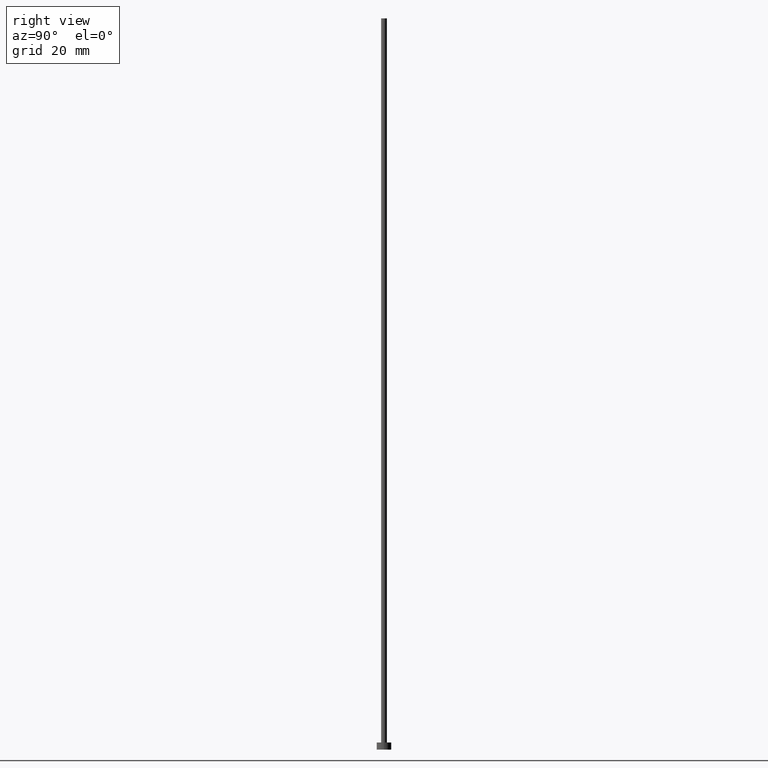
[diagram: clean part render]
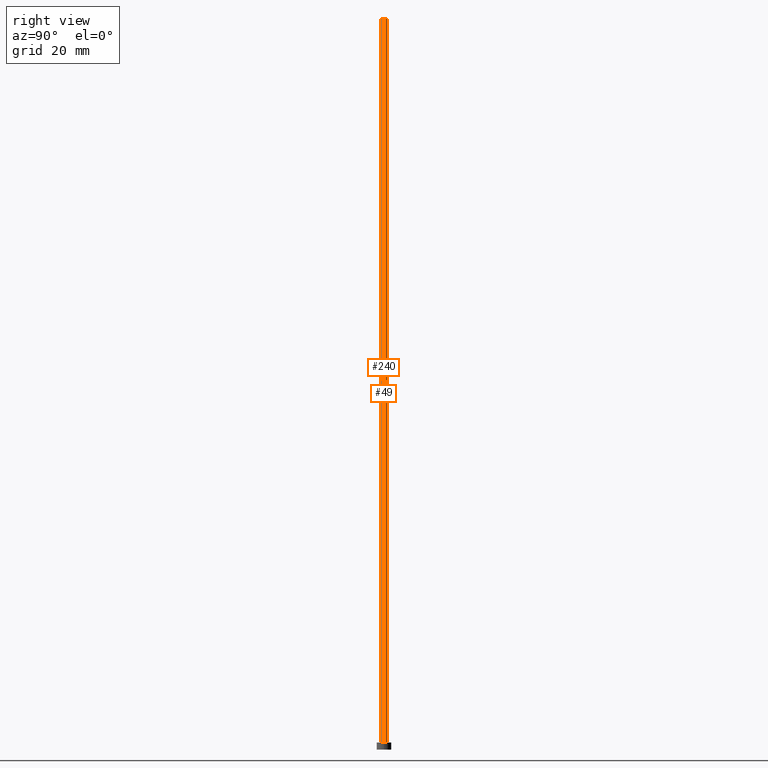
[diagram: same view with one multi-face feature highlighted, each face labeled with its STEP entity id]
A machine part, right view. The highlighted faces form ONE feature: a constant-radius fillet chain: 2 tangent blend faces with common blend radius 0.5 mm. The faces share edges in the B-rep.
Their STEP definitions:
[1] entity #49 (Cylinder):
#8 = CARTESIAN_POINT ( 'NONE',  ( 0.5000000000000000000, 6.123233995736766036E-17, 1.199999999999999956 ) ) ;
#10 = AXIS2_PLACEMENT_3D ( 'NONE', #63, #149, #226 ) ;
#15 = VERTEX_POINT ( 'NONE', #113 ) ;
#21 = CARTESIAN_POINT ( 'NONE',  ( 0.000000000000000000, 0.000000000000000000, 1.199999999999999956 ) ) ;
#29 = VERTEX_POINT ( 'NONE', #164 ) ;
#36 = ORIENTED_EDGE ( 'NONE', *, *, #155, .F. ) ;
#44 = VERTEX_POINT ( 'NONE', #8 ) ;
#49 = ADVANCED_FACE ( 'NONE', ( #84 ), #159, .T. ) ;
#56 = DIRECTION ( 'NONE',  ( 0.000000000000000000, 0.000000000000000000, 1.000000000000000000 ) ) ;
#62 = VECTOR ( 'NONE', #102, 1000.000000000000000 ) ;
#63 = CARTESIAN_POINT ( 'NONE',  ( 0.000000000000000000, 0.000000000000000000, 125.0000000000000000 ) ) ;
#65 = DIRECTION ( 'NONE',  ( -0.000000000000000000, -0.000000000000000000, -1.000000000000000000 ) ) ;
#74 = EDGE_CURVE ( 'NONE', #29, #44, #181, .T. ) ;
#80 = DIRECTION ( 'NONE',  ( 0.000000000000000000, 0.000000000000000000, 1.000000000000000000 ) ) ;
#84 = FACE_OUTER_BOUND ( 'NONE', #192, .T. ) ;
#87 = EDGE_CURVE ( 'NONE', #44, #216, #152, .T. ) ;
#92 = CIRCLE ( 'NONE', #103, 0.5000000000000000000 ) ;
#95 = ORIENTED_EDGE ( 'NONE', *, *, #87, .T. ) ;
#102 = DIRECTION ( 'NONE',  ( -0.000000000000000000, -0.000000000000000000, -1.000000000000000000 ) ) ;
#103 = AXIS2_PLACEMENT_3D ( 'NONE', #231, #56, #252 ) ;
#108 = EDGE_CURVE ( 'NONE', #15, #216, #194, .T. ) ;
#113 = CARTESIAN_POINT ( 'NONE',  ( -0.5000000000000000000, 0.000000000000000000, 125.0000000000000000 ) ) ;
#133 = ORIENTED_EDGE ( 'NONE', *, *, #74, .T. ) ;
#149 = DIRECTION ( 'NONE',  ( -0.000000000000000000, -0.000000000000000000, -1.000000000000000000 ) ) ;
#152 = CIRCLE ( 'NONE', #228, 0.5000000000000000000 ) ;
#155 = EDGE_CURVE ( 'NONE', #29, #15, #92, .T. ) ;
#159 = CYLINDRICAL_SURFACE ( 'NONE', #10, 0.5000000000000000000 ) ;
#164 = CARTESIAN_POINT ( 'NONE',  ( 0.5000000000000000000, 6.123233995736766036E-17, 125.0000000000000000 ) ) ;
#180 = VECTOR ( 'NONE', #65, 1000.000000000000000 ) ;
#181 = LINE ( 'NONE', #198, #62 ) ;
#192 = EDGE_LOOP ( 'NONE', ( #36, #133, #95, #227 ) ) ;
#194 = LINE ( 'NONE', #222, #180 ) ;
#198 = CARTESIAN_POINT ( 'NONE',  ( 0.5000000000000000000, 6.123233995736766036E-17, 125.0000000000000000 ) ) ;
#216 = VERTEX_POINT ( 'NONE', #230 ) ;
#217 = DIRECTION ( 'NONE',  ( 1.000000000000000000, 0.000000000000000000, 0.000000000000000000 ) ) ;
#222 = CARTESIAN_POINT ( 'NONE',  ( -0.5000000000000000000, 0.000000000000000000, 125.0000000000000000 ) ) ;
#226 = DIRECTION ( 'NONE',  ( -1.000000000000000000, 0.000000000000000000, 0.000000000000000000 ) ) ;
#227 = ORIENTED_EDGE ( 'NONE', *, *, #108, .F. ) ;
#228 = AXIS2_PLACEMENT_3D ( 'NONE', #21, #80, #217 ) ;
#230 = CARTESIAN_POINT ( 'NONE',  ( -0.5000000000000000000, 0.000000000000000000, 1.199999999999999956 ) ) ;
#231 = CARTESIAN_POINT ( 'NONE',  ( 0.000000000000000000, 0.000000000000000000, 125.0000000000000000 ) ) ;
#252 = DIRECTION ( 'NONE',  ( 1.000000000000000000, 0.000000000000000000, 0.000000000000000000 ) ) ;
[2] entity #240 (Cylinder):
#1 = DIRECTION ( 'NONE',  ( -0.000000000000000000, -0.000000000000000000, -1.000000000000000000 ) ) ;
#2 = EDGE_LOOP ( 'NONE', ( #218, #249, #51, #90 ) ) ;
#5 = DIRECTION ( 'NONE',  ( -1.000000000000000000, 0.000000000000000000, 0.000000000000000000 ) ) ;
#8 = CARTESIAN_POINT ( 'NONE',  ( 0.5000000000000000000, 6.123233995736766036E-17, 1.199999999999999956 ) ) ;
#15 = VERTEX_POINT ( 'NONE', #113 ) ;
#29 = VERTEX_POINT ( 'NONE', #164 ) ;
#37 = CIRCLE ( 'NONE', #39, 0.5000000000000000000 ) ;
#38 = CARTESIAN_POINT ( 'NONE',  ( 0.000000000000000000, 0.000000000000000000, 125.0000000000000000 ) ) ;
#39 = AXIS2_PLACEMENT_3D ( 'NONE', #38, #219, #125 ) ;
#44 = VERTEX_POINT ( 'NONE', #8 ) ;
#51 = ORIENTED_EDGE ( 'NONE', *, *, #108, .T. ) ;
#59 = DIRECTION ( 'NONE',  ( 1.000000000000000000, 0.000000000000000000, 0.000000000000000000 ) ) ;
#62 = VECTOR ( 'NONE', #102, 1000.000000000000000 ) ;
#65 = DIRECTION ( 'NONE',  ( -0.000000000000000000, -0.000000000000000000, -1.000000000000000000 ) ) ;
#74 = EDGE_CURVE ( 'NONE', #29, #44, #181, .T. ) ;
#82 = EDGE_CURVE ( 'NONE', #216, #44, #210, .T. ) ;
#90 = ORIENTED_EDGE ( 'NONE', *, *, #82, .T. ) ;
#99 = CARTESIAN_POINT ( 'NONE',  ( 0.000000000000000000, 0.000000000000000000, 1.199999999999999956 ) ) ;
#101 = EDGE_CURVE ( 'NONE', #15, #29, #37, .T. ) ;
#102 = DIRECTION ( 'NONE',  ( -0.000000000000000000, -0.000000000000000000, -1.000000000000000000 ) ) ;
#108 = EDGE_CURVE ( 'NONE', #15, #216, #194, .T. ) ;
#113 = CARTESIAN_POINT ( 'NONE',  ( -0.5000000000000000000, 0.000000000000000000, 125.0000000000000000 ) ) ;
#124 = CYLINDRICAL_SURFACE ( 'NONE', #225, 0.5000000000000000000 ) ;
#125 = DIRECTION ( 'NONE',  ( 1.000000000000000000, 0.000000000000000000, 0.000000000000000000 ) ) ;
#136 = AXIS2_PLACEMENT_3D ( 'NONE', #99, #144, #59 ) ;
#144 = DIRECTION ( 'NONE',  ( 0.000000000000000000, 0.000000000000000000, 1.000000000000000000 ) ) ;
#164 = CARTESIAN_POINT ( 'NONE',  ( 0.5000000000000000000, 6.123233995736766036E-17, 125.0000000000000000 ) ) ;
#169 = FACE_OUTER_BOUND ( 'NONE', #2, .T. ) ;
#170 = CARTESIAN_POINT ( 'NONE',  ( 0.000000000000000000, 0.000000000000000000, 125.0000000000000000 ) ) ;
#180 = VECTOR ( 'NONE', #65, 1000.000000000000000 ) ;
#181 = LINE ( 'NONE', #198, #62 ) ;
#194 = LINE ( 'NONE', #222, #180 ) ;
#198 = CARTESIAN_POINT ( 'NONE',  ( 0.5000000000000000000, 6.123233995736766036E-17, 125.0000000000000000 ) ) ;
#210 = CIRCLE ( 'NONE', #136, 0.5000000000000000000 ) ;
#216 = VERTEX_POINT ( 'NONE', #230 ) ;
#218 = ORIENTED_EDGE ( 'NONE', *, *, #74, .F. ) ;
#219 = DIRECTION ( 'NONE',  ( 0.000000000000000000, 0.000000000000000000, 1.000000000000000000 ) ) ;
#222 = CARTESIAN_POINT ( 'NONE',  ( -0.5000000000000000000, 0.000000000000000000, 125.0000000000000000 ) ) ;
#225 = AXIS2_PLACEMENT_3D ( 'NONE', #170, #1, #5 ) ;
#230 = CARTESIAN_POINT ( 'NONE',  ( -0.5000000000000000000, 0.000000000000000000, 1.199999999999999956 ) ) ;
#240 = ADVANCED_FACE ( 'NONE', ( #169 ), #124, .T. ) ;
#249 = ORIENTED_EDGE ( 'NONE', *, *, #101, .F. ) ;